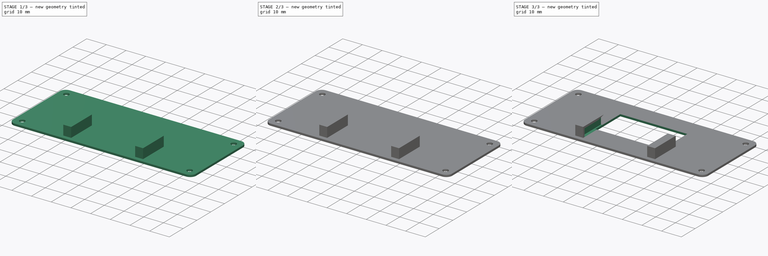
[diagram: build sequence overview — one tinted view per stage of 3, left to right]
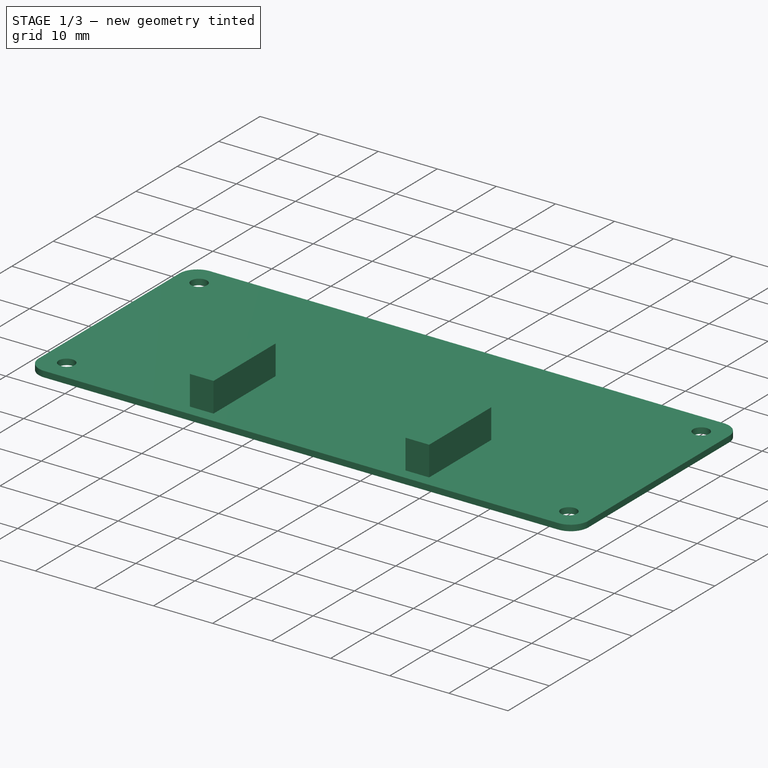
[diagram: stage 1 of 3 — iso view after this stage's code; geometry added in this stage tinted green]
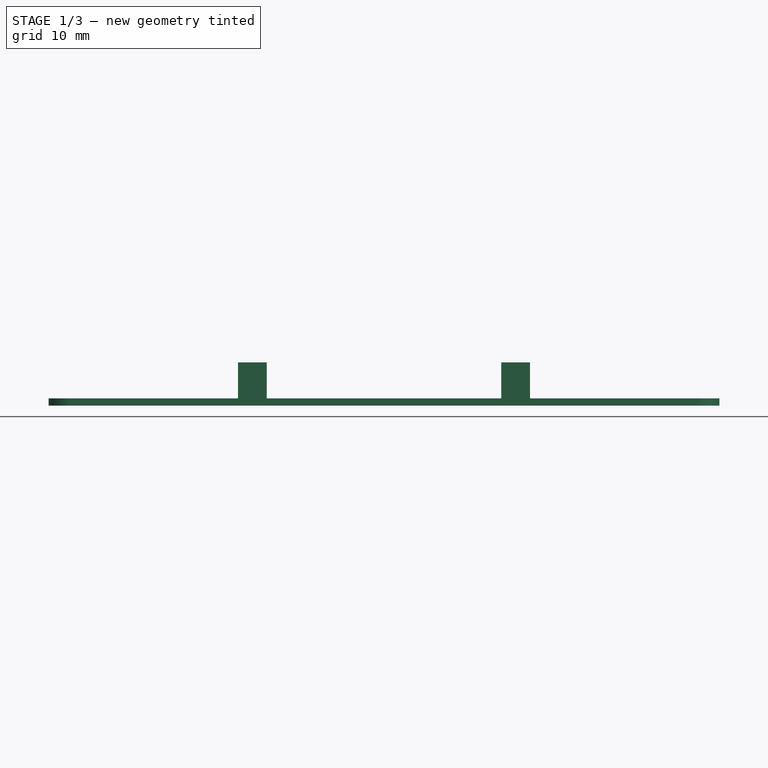
[diagram: stage 1 of 3 — front view after this stage's code; geometry added in this stage tinted green]
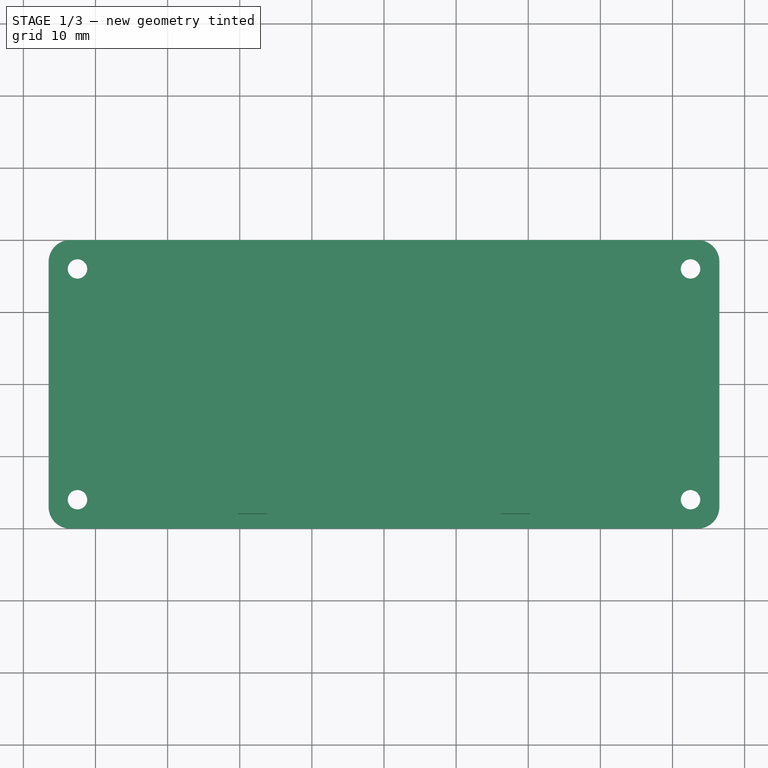
[diagram: stage 1 of 3 — top view after this stage's code; geometry added in this stage tinted green]
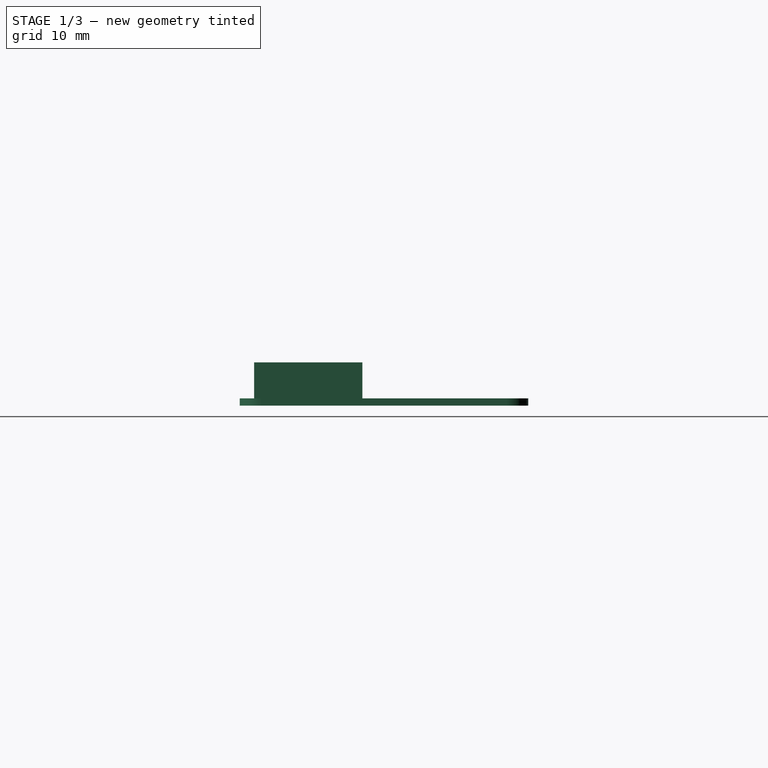
[diagram: stage 1 of 3 — right view after this stage's code; geometry added in this stage tinted green]
FCSTD DOCUMENT  (FreeCAD 0.20R29410 (Git))
Label: Top
License: All rights reserved
LicenseURL: http://en.wikipedia.org/wiki/All_rights_reserved
objects: Sketcher::SketchObject×5, PartDesign::Pad×2, PartDesign::Pocket×2, PartDesign::Mirrored×1, PartDesign::Body×1
note: 15 computed .brp shape members not serialized (recipe doc carries the construction recipe); baked Part::Feature solids carry a one-line shape summary decoded from their .brp

FEATURE [Sketcher::SketchObject] Sketch
  FullyConstrained = true
  MapMode = 5
  Support = -> [XY_Plane]
  sketch-geometry (16):
    g0: LineSegment StartX=-43.5 StartY=20 StartZ=0 EndX=43.5 EndY=20 EndZ=0
    g1: LineSegment StartX=46.5 StartY=17 StartZ=0 EndX=46.5 EndY=-17 EndZ=0
    g2: LineSegment StartX=43.5 StartY=-20 StartZ=0 EndX=-43.5 EndY=-20 EndZ=0
    g3: LineSegment StartX=-46.5 StartY=-17 StartZ=0 EndX=-46.5 EndY=17 EndZ=0
    g4: ArcOfCircle CenterX=-43.5 CenterY=17 CenterZ=0 NormalX=0 NormalY=0 NormalZ=1 AngleXU=0 Radius=3 StartAngle=1.5708 EndAngle=3.14159
    g5: GeomPoint X=-46.5 Y=20 Z=0
    g6: ArcOfCircle CenterX=-43.5 CenterY=-17 CenterZ=0 NormalX=0 NormalY=0 NormalZ=1 AngleXU=0 Radius=3 StartAngle=3.14159 EndAngle=4.71239
    g7: GeomPoint X=-46.5 Y=-20 Z=0
    g8: ArcOfCircle CenterX=43.5 CenterY=17 CenterZ=0 NormalX=0 NormalY=0 NormalZ=1 AngleXU=0 Radius=3 StartAngle=-9e-16 EndAngle=1.5708
    g9: GeomPoint X=46.5 Y=20 Z=0
    g10: ArcOfCircle CenterX=43.5 CenterY=-17 CenterZ=0 NormalX=0 NormalY=0 NormalZ=1 AngleXU=0 Radius=3 StartAngle=4.71239 EndAngle=6.28319
    g11: GeomPoint X=46.5 Y=-20 Z=0
    g12: Circle CenterX=-42.5 CenterY=16 CenterZ=0 NormalX=0 NormalY=0 NormalZ=1 AngleXU=0 Radius=1.35
    g13: Circle CenterX=42.5 CenterY=16 CenterZ=0 NormalX=0 NormalY=0 NormalZ=1 AngleXU=0 Radius=1.35
    g14: Circle CenterX=-42.5 CenterY=-16 CenterZ=0 NormalX=0 NormalY=0 NormalZ=1 AngleXU=0 Radius=1.35
    g15: Circle CenterX=42.5 CenterY=-16 CenterZ=0 NormalX=0 NormalY=0 NormalZ=1 AngleXU=0 Radius=1.35
  constraints (36):
    c: Horizontal(g0)
    c: Horizontal(g2)
    c: Vertical(g1)
    c: Vertical(g3)
    c: Symmetric(g5,g11,g-1)
    c: PointOnObject(g5,g3)
    c: PointOnObject(g5,g0)
    c: Tangent(g3,g4) = 1.5708
    c: Tangent(g0,g4) = 1.5708
    c: PointOnObject(g7,g3)
    c: PointOnObject(g7,g2)
    c: Tangent(g3,g6) = 1.5708
    c: Tangent(g2,g6) = 1.5708
    c: PointOnObject(g9,g0)
    c: PointOnObject(g9,g1)
    c: Tangent(g0,g8) = 1.5708
    c: Tangent(g1,g8) = 1.5708
    c: PointOnObject(g11,g1)
    c: PointOnObject(g11,g2)
    c: Tangent(g1,g10) = 1.5708
    c: Tangent(g2,g10) = 1.5708
    c: Equal(g10,g8)
    c: Equal(g8,g4)
    c: Equal(g4,g6)
    c: Equal(g15,g14)
    c: Equal(g14,g12)
    c: Equal(g12,g13)
    c: Symmetric(g15,g14,g-2)
    c: Symmetric(g12,g13,g-2)
    c: Symmetric(g12,g14,g-1)
    c: Diameter(g12) = 2.7
    c: DistanceY(g7,g5) = 40
    c: DistanceX(g5,g9) = 93
    c: DistanceX(g14,g15) = 85
    c: DistanceY(g15,g13) = 32
    c: Diameter(g8) = 6
FEATURE [PartDesign::Pad] Pad
  Direction = (0,0,1)
  Length = 1
  Length2 = 10
  Profile = -> Sketch
  ReferenceAxis = -> Sketch [N_Axis]
  Type = 0
FEATURE [Sketcher::SketchObject] Sketch001
  FullyConstrained = true
  MapMode = 5
  Placement = pos=(0,0,1) rot=(0,0,1;0rad)
  Support = -> [Pad]
  sketch-geometry (37):
    g0: LineSegment StartX=-37.5 StartY=-9 StartZ=0 EndX=-36.3397 EndY=-11.0096 EndZ=0
    g1: LineSegment StartX=-36.3397 StartY=-11.0096 StartZ=0 EndX=-34.0192 EndY=-11.0096 EndZ=0
    g2: LineSegment StartX=-34.0192 StartY=-11.0096 StartZ=0 EndX=-32.859 EndY=-9 EndZ=0
    g3: LineSegment StartX=-32.859 StartY=-9 StartZ=0 EndX=-34.0192 EndY=-6.99038 EndZ=0
    g4: LineSegment StartX=-34.0192 StartY=-6.99038 StartZ=0 EndX=-36.3397 EndY=-6.99038 EndZ=0
    g5: LineSegment StartX=-36.3397 StartY=-6.99038 StartZ=0 EndX=-37.5 EndY=-9 EndZ=0
    g6: Circle CenterX=-35.1795 CenterY=-9 CenterZ=0 NormalX=0 NormalY=0 NormalZ=1 AngleXU=0 Radius=2.32051
    g7: LineSegment StartX=-27.141 StartY=-9 StartZ=0 EndX=-25.9808 EndY=-11.0096 EndZ=0
    g8: LineSegment StartX=-25.9808 StartY=-11.0096 StartZ=0 EndX=-23.6603 EndY=-11.0096 EndZ=0
    g9: LineSegment StartX=-23.6603 StartY=-11.0096 StartZ=0 EndX=-22.5 EndY=-9 EndZ=0
    g10: LineSegment StartX=-22.5 StartY=-9 StartZ=0 EndX=-23.6603 EndY=-6.99038 EndZ=0
    g11: LineSegment StartX=-23.6603 StartY=-6.99038 StartZ=0 EndX=-25.9808 EndY=-6.99038 EndZ=0
    g12: LineSegment StartX=-25.9808 StartY=-6.99038 StartZ=0 EndX=-27.141 EndY=-9 EndZ=0
    g13: Circle CenterX=-24.8205 CenterY=-9 CenterZ=0 NormalX=0 NormalY=0 NormalZ=1 AngleXU=0 Radius=2.32051
    g14: LineSegment StartX=-31.1603 StartY=-14 StartZ=0 EndX=-28.8397 EndY=-14 EndZ=0
    g15: LineSegment StartX=-28.8397 StartY=-14 StartZ=0 EndX=-27.6795 EndY=-11.9904 EndZ=0
    g16: LineSegment StartX=-27.6795 StartY=-11.9904 StartZ=0 EndX=-28.8397 EndY=-9.98076 EndZ=0
    g17: LineSegment StartX=-28.8397 StartY=-9.98076 StartZ=0 EndX=-31.1603 EndY=-9.98076 EndZ=0
    g18: LineSegment StartX=-31.1603 StartY=-9.98076 StartZ=0 EndX=-32.3205 EndY=-11.9904 EndZ=0
    g19: LineSegment StartX=-32.3205 StartY=-11.9904 StartZ=0 EndX=-31.1603 EndY=-14 EndZ=0
    g20: Circle CenterX=-30 CenterY=-11.9904 CenterZ=0 NormalX=0 NormalY=0 NormalZ=1 AngleXU=0 Radius=2.32051
    g21: LineSegment StartX=-28.8397 StartY=-4 StartZ=0 EndX=-31.1603 EndY=-4 EndZ=0
    g22: LineSegment StartX=-31.1603 StartY=-4 StartZ=0 EndX=-32.3205 EndY=-6.00962 EndZ=0
    g23: LineSegment StartX=-32.3205 StartY=-6.00962 StartZ=0 EndX=-31.1603 EndY=-8.01924 EndZ=0
    g24: LineSegment StartX=-31.1603 StartY=-8.01924 StartZ=0 EndX=-28.8397 EndY=-8.01924 EndZ=0
    g25: LineSegment StartX=-28.8397 StartY=-8.01924 StartZ=0 EndX=-27.6795 EndY=-6.00962 EndZ=0
    g26: LineSegment StartX=-27.6795 StartY=-6.00962 StartZ=0 EndX=-28.8397 EndY=-4 EndZ=0
    g27: Circle CenterX=-30 CenterY=-6.00962 CenterZ=0 NormalX=0 NormalY=0 NormalZ=1 AngleXU=0 Radius=2.32051
    g28: LineSegment StartX=-35.1795 StartY=-9 StartZ=0 EndX=-30 EndY=-6.00962 EndZ=0
    g29: LineSegment StartX=-30 StartY=-6.00962 StartZ=0 EndX=-24.8205 EndY=-9 EndZ=0
    g30: LineSegment StartX=-24.8205 StartY=-9 StartZ=0 EndX=-30 EndY=-11.9904 EndZ=0
    g31: LineSegment StartX=-30 StartY=-11.9904 StartZ=0 EndX=-35.1795 EndY=-9 EndZ=0
    g32: LineSegment StartX=-37.5 StartY=-4 StartZ=0 EndX=-22.5 EndY=-4 EndZ=0
    g33: LineSegment StartX=-22.5 StartY=-4 StartZ=0 EndX=-22.5 EndY=-14 EndZ=0
    g34: LineSegment StartX=-22.5 StartY=-14 StartZ=0 EndX=-37.5 EndY=-14 EndZ=0
    g35: LineSegment StartX=-37.5 StartY=-14 StartZ=0 EndX=-37.5 EndY=-4 EndZ=0
    g36: GeomPoint X=-30 Y=-9 Z=0
  constraints (89):
    c: Coincident(g0,g1)
    c: Coincident(g1,g2)
    c: Coincident(g2,g3)
    c: Coincident(g3,g4)
    c: Coincident(g4,g5)
    c: Coincident(g5,g0)
    c: Equal(g0, g1-g5) x5
    c: PointOnObject(g0,g6)
    c: PointOnObject(g1,g6)
    c: PointOnObject(g2,g6)
    c: PointOnObject(g3,g6)
    c: PointOnObject(g4,g6)
    c: PointOnObject(g5,g6)
    c: Coincident(g7,g8)
    c: Coincident(g8,g9)
    c: Coincident(g9,g10)
    c: Coincident(g10,g11)
    c: Coincident(g11,g12)
    c: Coincident(g12,g7)
    c: Equal(g7, g8-g12) x5
    c: PointOnObject(g7,g13)
    c: PointOnObject(g8,g13)
    c: PointOnObject(g9,g13)
    c: PointOnObject(g10,g13)
    c: PointOnObject(g11,g13)
    c: PointOnObject(g12,g13)
    c: Coincident(g14,g15)
    c: Coincident(g15,g16)
    c: Coincident(g16,g17)
    c: Coincident(g17,g18)
    c: Coincident(g18,g19)
    c: Coincident(g19,g14)
    c: Equal(g14, g15-g19) x5
    c: PointOnObject(g14,g20)
    c: PointOnObject(g15,g20)
    c: PointOnObject(g16,g20)
    c: PointOnObject(g17,g20)
    c: PointOnObject(g18,g20)
    c: PointOnObject(g19,g20)
    c: Coincident(g21,g22)
    c: Coincident(g22,g23)
    c: Coincident(g23,g24)
    c: Coincident(g24,g25)
    c: Coincident(g25,g26)
    c: Coincident(g26,g21)
    c: Equal(g21, g22-g26) x5
    c: PointOnObject(g21,g27)
    c: PointOnObject(g22,g27)
    c: PointOnObject(g23,g27)
    c: PointOnObject(g24,g27)
    c: PointOnObject(g25,g27)
    c: PointOnObject(g26,g27)
    c: Horizontal(g21)
    c: Horizontal(g4)
    c: Horizontal(g11)
    c: Horizontal(g17)
    c: Equal(g6,g27)
    c: Equal(g27,g13)
    c: Equal(g13,g20)
    c: Coincident(g28,g6)
    c: Coincident(g28,g27)
    c: Coincident(g28,g29)
    c: Coincident(g29,g13)
    c: Coincident(g29,g30)
    c: Coincident(g30,g20)
    c: Coincident(g30,g31)
    c: Coincident(g31,g28)
    c: Parallel(g28,g30)
    c: Parallel(g29,g31)
    c: Angle(g28,g29) = 2.0944
    c: Coincident(g32,g33)
    c: Coincident(g33,g34)
    c: Coincident(g34,g35)
    c: Coincident(g35,g32)
    c: Horizontal(g32)
    c: Horizontal(g34)
    c: Vertical(g33)
    c: Vertical(g35)
    c: PointOnObject(g9,g33)
    c: PointOnObject(g0,g35)
    c: PointOnObject(g21,g32)
    c: PointOnObject(g14,g34)
    c: Symmetric(g13,g6,g36)
    c: Horizontal(g6,g13)
    c: Vertical(g20,g27)
    c: DistanceX(g32,g32) = 15
    c: DistanceY(g36,g-1) = 9
    c: DistanceX(g36,g-1) = 30
    c: DistanceY(g33,g33) = 10
FEATURE [Sketcher::SketchObject] Sketch002
  ExternalGeometry = -> [Pad]
  FullyConstrained = true
  MapMode = 5
  Placement = pos=(0,0,1) rot=(0,0,1;0rad)
  Support = -> [Pad]
  sketch-geometry (12):
    g0: LineSegment StartX=20.25 StartY=-18 StartZ=0 EndX=16.25 EndY=-18 EndZ=0
    g1: LineSegment StartX=16.25 StartY=-18 StartZ=0 EndX=16.25 EndY=-3 EndZ=0
    g2: LineSegment StartX=16.25 StartY=-3 StartZ=0 EndX=20.25 EndY=-3 EndZ=0
    g3: LineSegment StartX=20.25 StartY=-3 StartZ=0 EndX=20.25 EndY=-18 EndZ=0
    g4: LineSegment StartX=-16.25 StartY=-18 StartZ=0 EndX=-20.25 EndY=-18 EndZ=0
    g5: LineSegment StartX=-20.25 StartY=-18 StartZ=0 EndX=-20.25 EndY=-3 EndZ=0
    g6: LineSegment StartX=-20.25 StartY=-3 StartZ=0 EndX=-16.25 EndY=-3 EndZ=0
    g7: LineSegment StartX=-16.25 StartY=-3 StartZ=0 EndX=-16.25 EndY=-18 EndZ=0
    g8: LineSegment StartX=-17 StartY=9 StartZ=0 EndX=17 EndY=9 EndZ=0
    g9: LineSegment StartX=17 StartY=9 StartZ=0 EndX=17 EndY=-9 EndZ=0
    g10: LineSegment StartX=17 StartY=-9 StartZ=0 EndX=-17 EndY=-9 EndZ=0
    g11: LineSegment StartX=-17 StartY=-9 StartZ=0 EndX=-17 EndY=9 EndZ=0
  constraints (34):
    c: Coincident(g0,g1)
    c: Coincident(g1,g2)
    c: Coincident(g2,g3)
    c: Coincident(g3,g0)
    c: Horizontal(g0)
    c: Horizontal(g2)
    c: Vertical(g1)
    c: Vertical(g3)
    c: Coincident(g4,g5)
    c: Coincident(g5,g6)
    c: Coincident(g6,g7)
    c: Coincident(g7,g4)
    c: Horizontal(g4)
    c: Horizontal(g6)
    c: Vertical(g5)
    c: Vertical(g7)
    c: Symmetric(g4,g0,g-2)
    c: Equal(g0,g4)
    c: DistanceX(g6,g1) = 32.5
    c: Horizontal(g6,g1)
    c: DistanceX(g2,g2) = 4
    c: DistanceY(g3,g3) = 15
    c: Coincident(g8,g9)
    c: Coincident(g9,g10)
    c: Coincident(g10,g11)
    c: Coincident(g11,g8)
    c: Horizontal(g8)
    c: Horizontal(g10)
    c: Vertical(g9)
    c: Vertical(g11)
    c: Symmetric(g9,g8,g-1)
    c: DistanceY(g9,g9) = 18
    c: DistanceX(g8,g8) = 34
    c: DistanceY(g0,g9) = 9
FEATURE [PartDesign::Pad] Pad001
  BaseFeature = -> Pad
  Direction = (0,0,1)
  Length = 5
  Length2 = 10
  Profile = -> Sketch002
  ReferenceAxis = -> Sketch002 [N_Axis]
  Type = 0
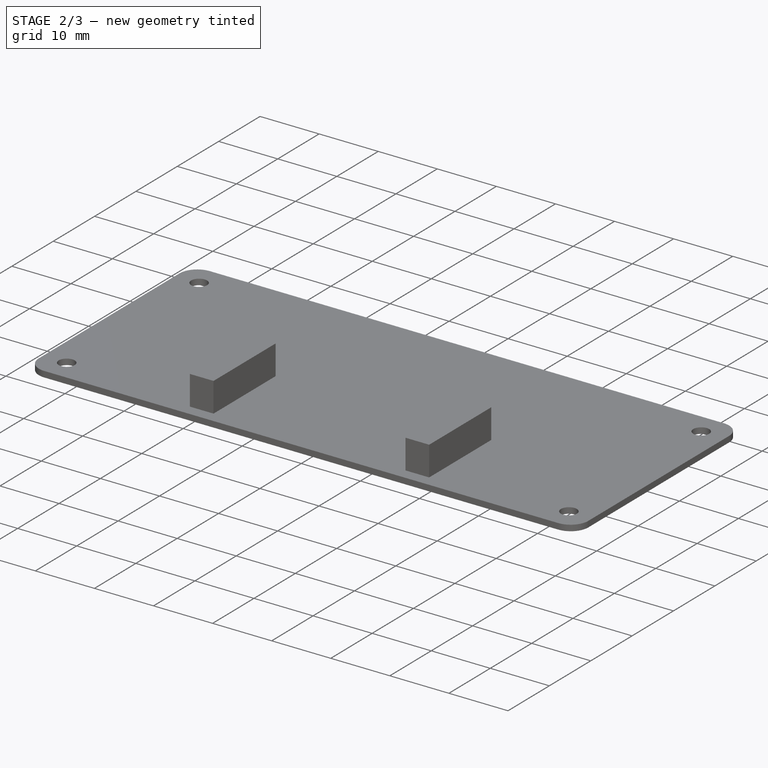
[diagram: stage 2 of 3 — iso view after this stage's code; geometry added in this stage tinted green]
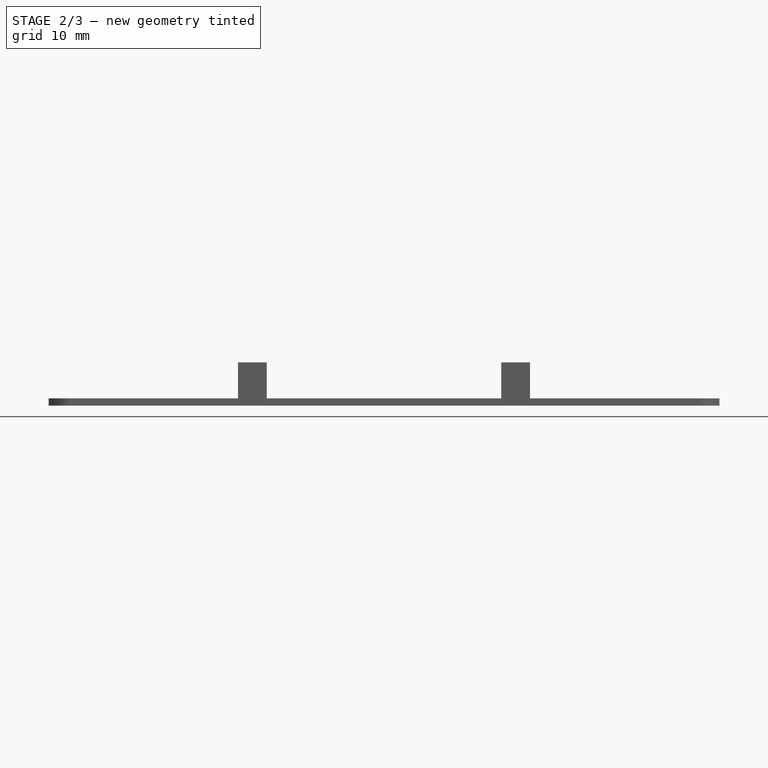
[diagram: stage 2 of 3 — front view after this stage's code; geometry added in this stage tinted green]
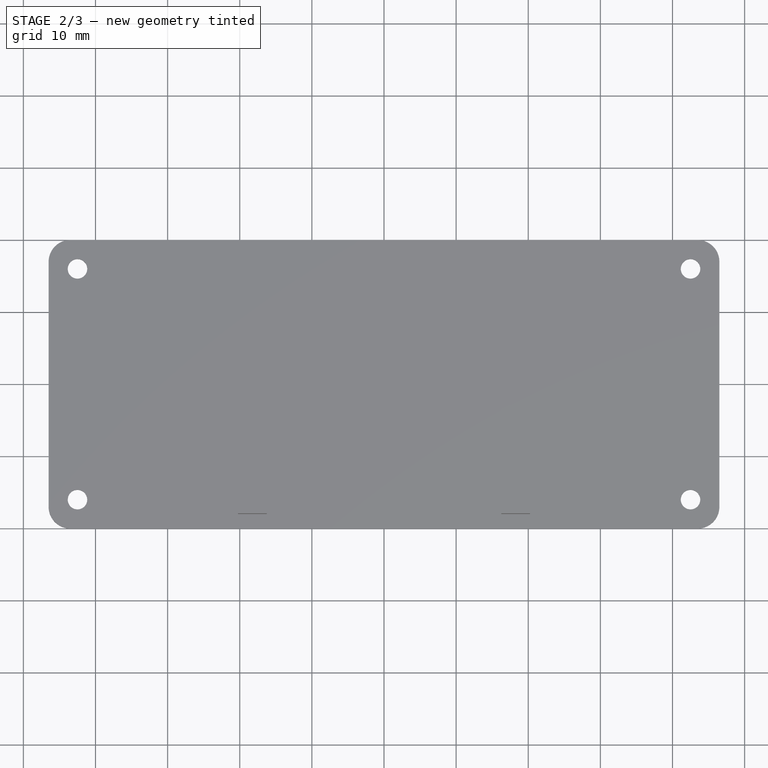
[diagram: stage 2 of 3 — top view after this stage's code; geometry added in this stage tinted green]
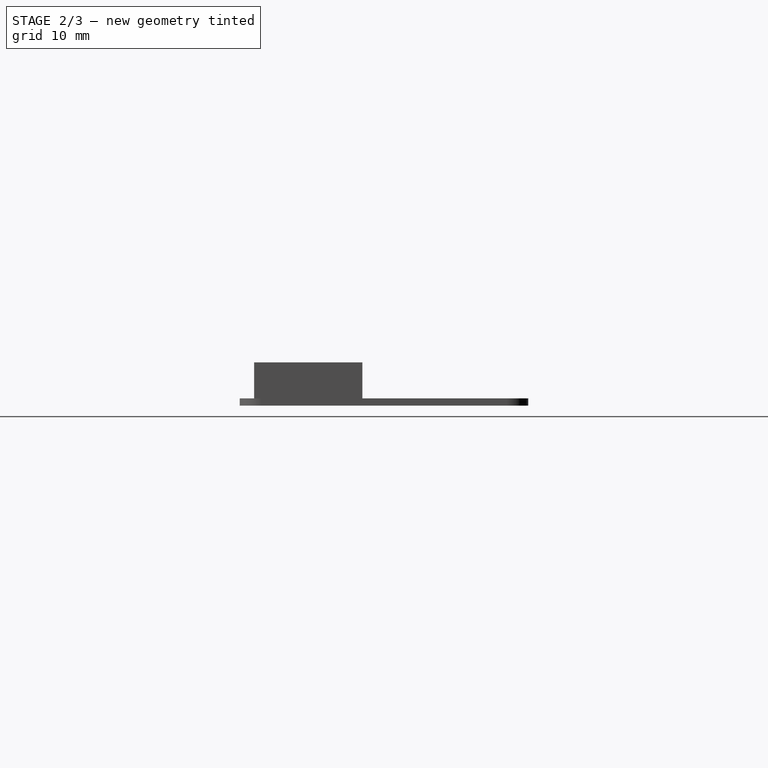
[diagram: stage 2 of 3 — right view after this stage's code; geometry added in this stage tinted green]
FEATURE [Sketcher::SketchObject] Sketch003
  ExternalGeometry = -> [Pad001]
  FullyConstrained = true
  MapMode = 5
  Placement = pos=(16.25,0,0) rot=(0.57735,-0.57735,-0.57735;2.0944rad)
  Support = -> [Pad001]
  sketch-geometry (5):
    g0: LineSegment StartX=3 StartY=6 StartZ=0 EndX=3 EndY=1 EndZ=0
    g1: LineSegment StartX=3 StartY=1 StartZ=0 EndX=17 EndY=1 EndZ=0
    g2: LineSegment StartX=17 StartY=1 StartZ=0 EndX=17 EndY=5 EndZ=0
    g3: LineSegment StartX=17 StartY=5 StartZ=0 EndX=7 EndY=5 EndZ=0
    g4: LineSegment StartX=7 StartY=5 StartZ=0 EndX=3 EndY=6 EndZ=0
  constraints (15):
    c: Coincident(g0,g1)
    c: Horizontal(g1)
    c: Coincident(g1,g2)
    c: Coincident(g2,g3)
    c: Horizontal(g3)
    c: Coincident(g3,g4)
    c: Coincident(g4,g0)
    c: PointOnObject(g1,g-3)
    c: Vertical(g0)
    c: Vertical(g0,g-3)
    c: Vertical(g2)
    c: DistanceY(g0,g0) = 5
    c: DistanceX(g4,g4) = 4
    c: DistanceY(g2,g2) = 4
    c: DistanceX(g1,g-3) = 1
FEATURE [PartDesign::Pocket] Pocket
  BaseFeature = -> Pad001
  Direction = (1,0,0)
  Length = 1.5
  Length2 = 5
  Profile = -> Sketch003
  ReferenceAxis = -> Sketch003 [N_Axis]
  Type = 0
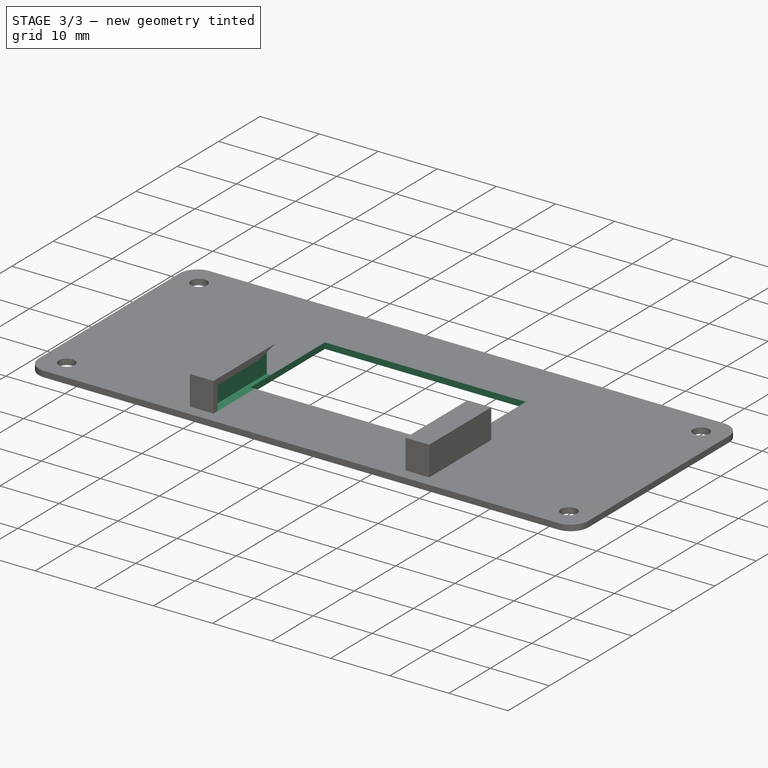
[diagram: stage 3 of 3 — iso view after this stage's code; geometry added in this stage tinted green]
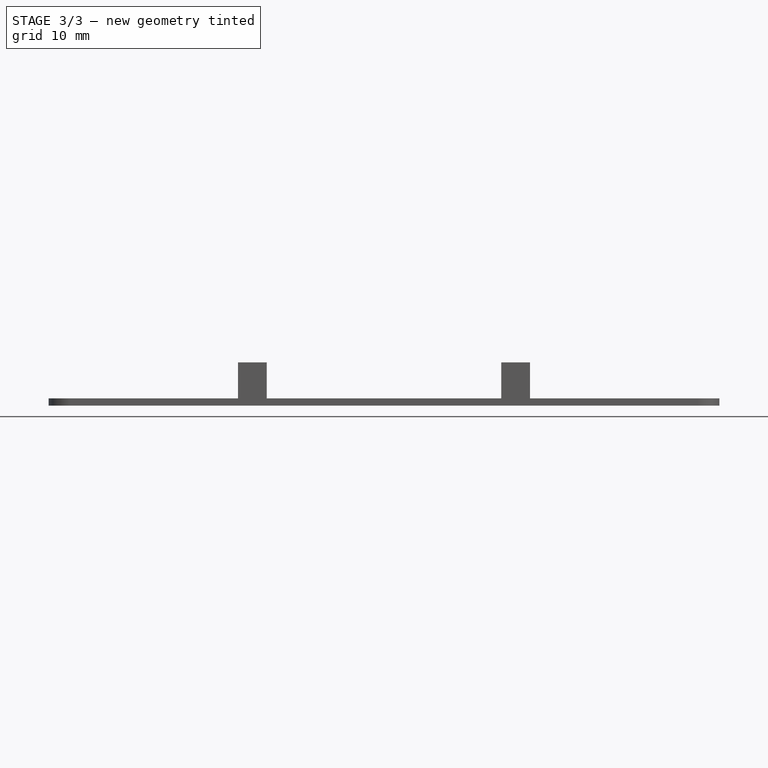
[diagram: stage 3 of 3 — front view after this stage's code; geometry added in this stage tinted green]
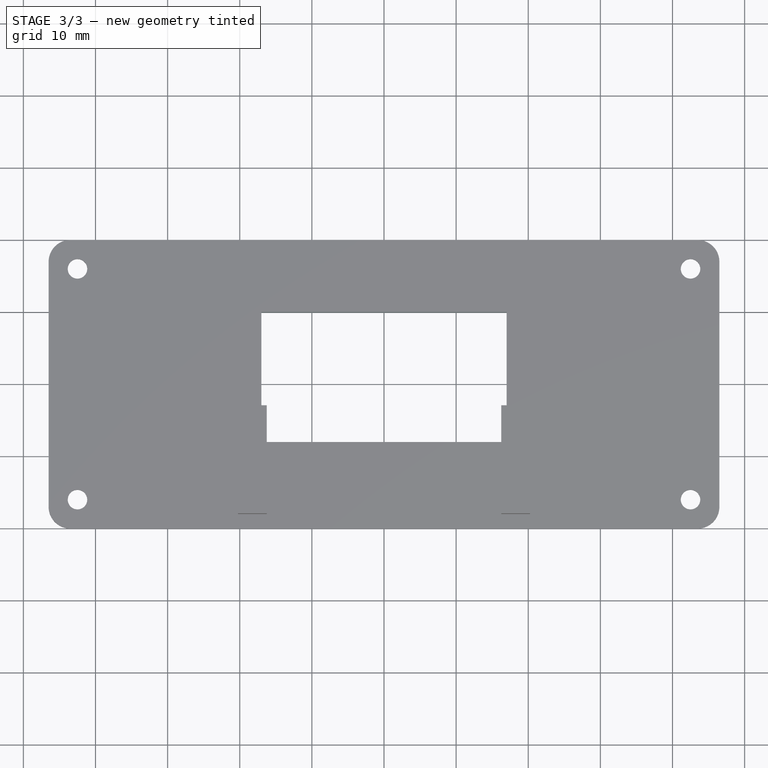
[diagram: stage 3 of 3 — top view after this stage's code; geometry added in this stage tinted green]
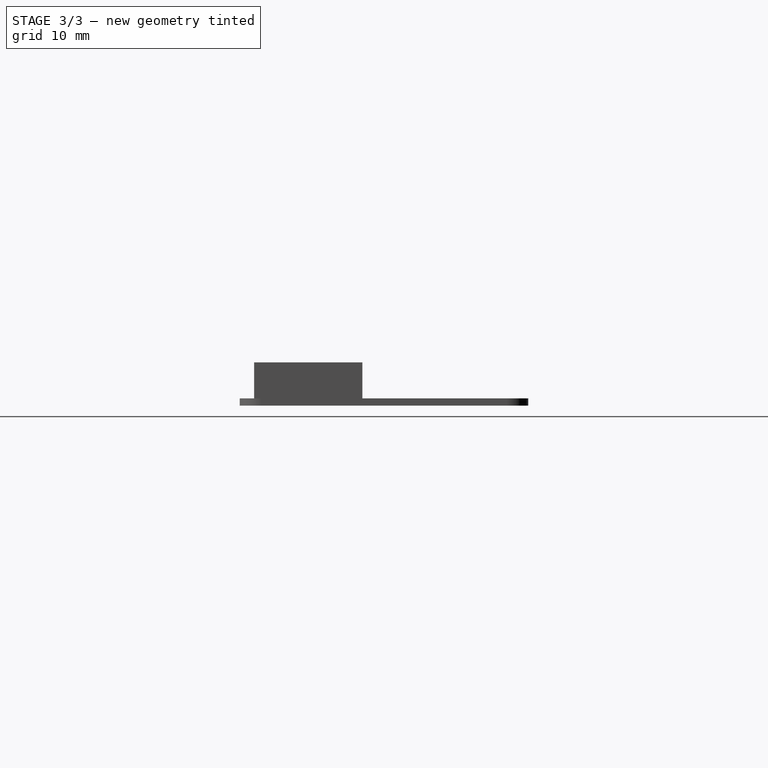
[diagram: stage 3 of 3 — right view after this stage's code; geometry added in this stage tinted green]
FEATURE [PartDesign::Mirrored] Mirrored
  BaseFeature = -> Pocket
  MirrorPlane = -> YZ_Plane
  Originals = -> [Pocket]
FEATURE [Sketcher::SketchObject] Sketch004
  ExternalGeometry = -> [Mirrored]
  FullyConstrained = true
  MapMode = 5
  Placement = pos=(0,0,1) rot=(0,0,1;0rad)
  Support = -> [Mirrored]
  sketch-geometry (4):
    g0: LineSegment StartX=-17 StartY=10 StartZ=0 EndX=17 EndY=10 EndZ=0
    g1: LineSegment StartX=17 StartY=10 StartZ=0 EndX=17 EndY=-8 EndZ=0
    g2: LineSegment StartX=17 StartY=-8 StartZ=0 EndX=-17 EndY=-8 EndZ=0
    g3: LineSegment StartX=-17 StartY=-8 StartZ=0 EndX=-17 EndY=10 EndZ=0
  constraints (11):
    c: Coincident(g0,g1)
    c: Coincident(g1,g2)
    c: Coincident(g2,g3)
    c: Coincident(g3,g0)
    c: Horizontal(g2)
    c: Vertical(g1)
    c: Vertical(g3)
    c: DistanceY(g1,g1) = 18
    c: DistanceX(g0,g0) = 34
    c: Symmetric(g0,g0,g-2)
    c: DistanceY(g-3,g1) = 9
FEATURE [PartDesign::Pocket] Pocket001
  BaseFeature = -> Mirrored
  Direction = (0,0,-1)
  Length = 5
  Length2 = 5
  Profile = -> Sketch004
  ReferenceAxis = -> Sketch004 [N_Axis]
  Type = 0
FEATURE [PartDesign::Body] Body
  Group = -> [Sketch,Pad,Sketch001,Sketch002,Pad001,Sketch003,Pocket,Mirrored,Sketch004,Pocket001]
  Origin = -> Origin
  Tip = -> Pocket001
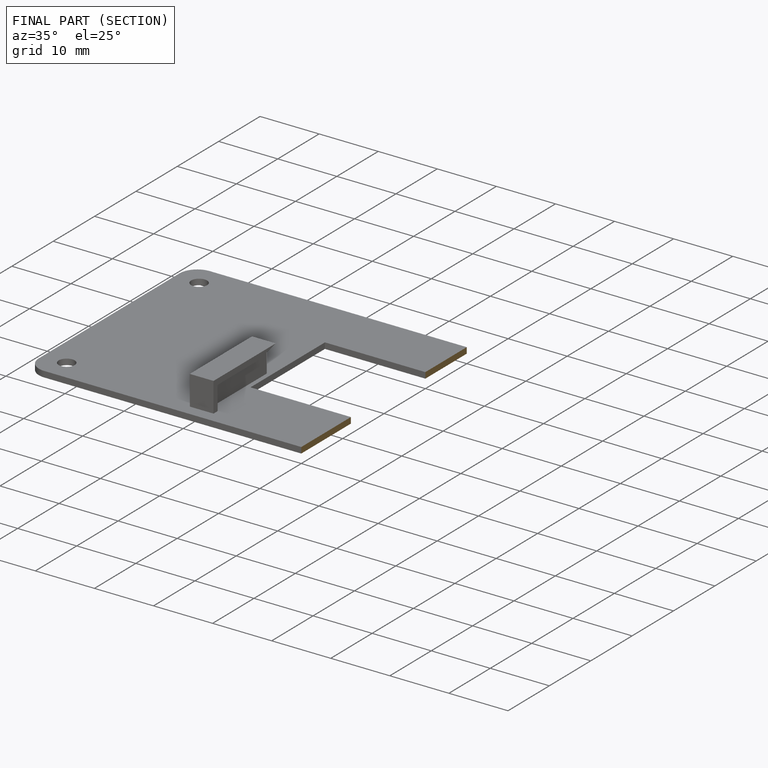
[diagram: finished part — half-section view (interior)]
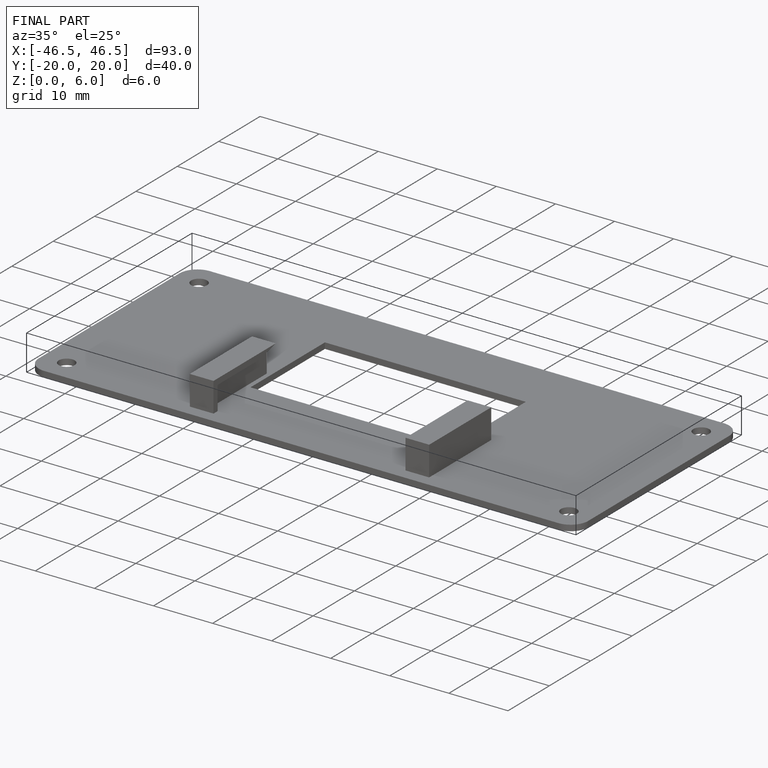
[diagram: finished part — iso view with bounding-box wireframe]
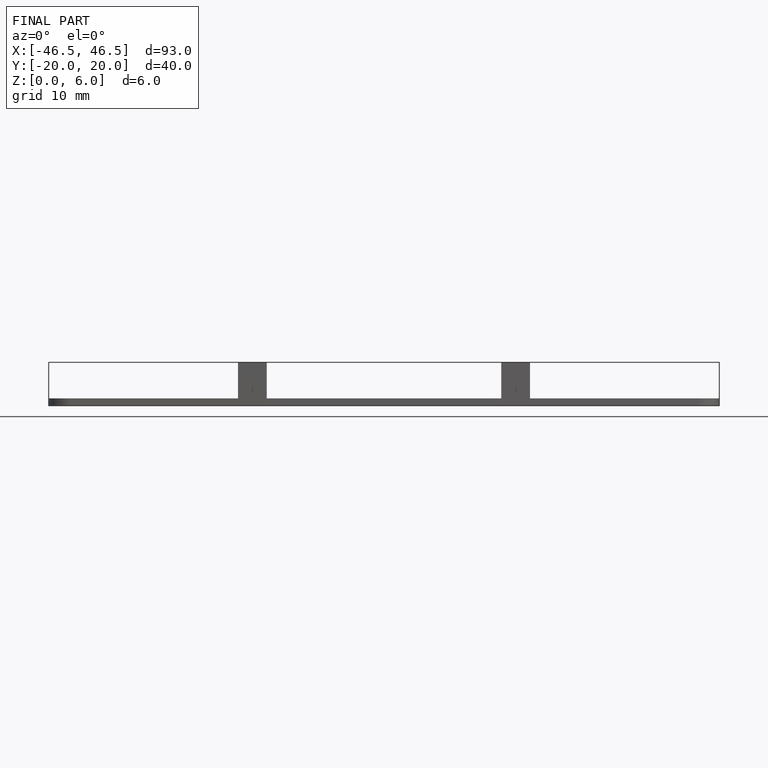
[diagram: finished part — front view with bounding-box wireframe]
